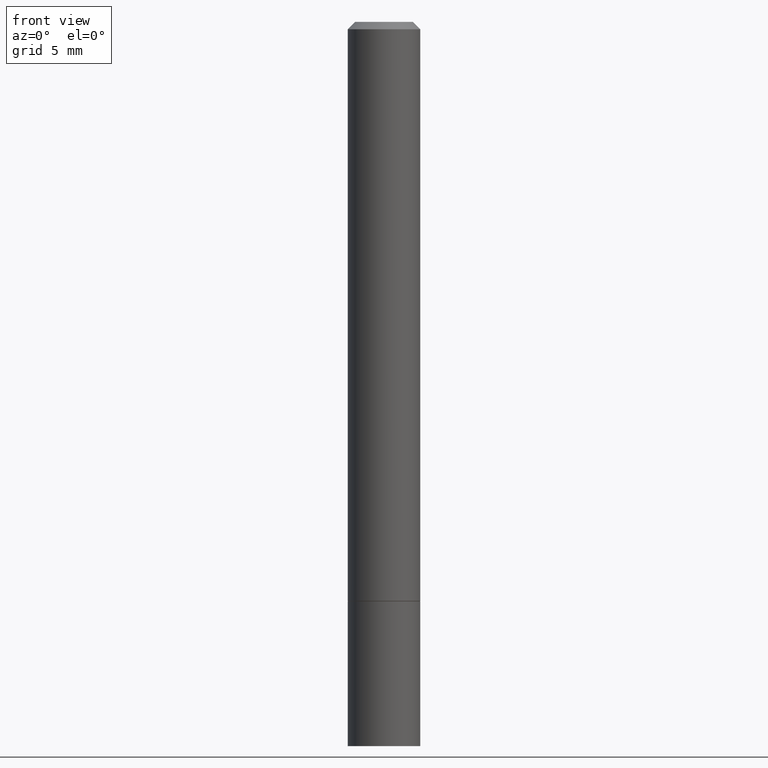
[diagram: clean part render]
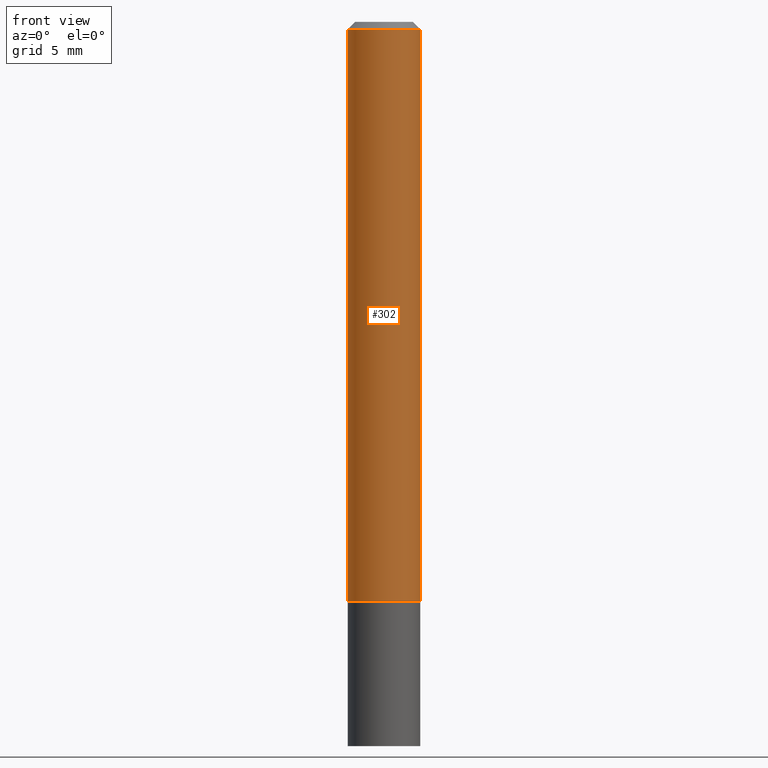
[diagram: same view with one face highlighted and labeled with its STEP entity id]
A machine part, front view. The second image highlights one B-rep face of the part: STEP entity #302.
In plain terms, the highlighted cylindrical surface (edge-blend (fillet) strip) has radius 2.5006 mm, axis along (-0, 0, 1).
Its self-contained STEP definition (entity closure, byte-faithful):
#21 = VERTEX_POINT ( 'NONE', #87 ) ;
#31 = DIRECTION ( 'NONE',  ( 1.000000000000000000, -6.982962677686265922E-15, 0.000000000000000000 ) ) ;
#33 = CARTESIAN_POINT ( 'NONE',  ( -0.09844999999999999585, -2.082832155568282351E-15, -1.573800000000000088 ) ) ;
#38 = AXIS2_PLACEMENT_3D ( 'NONE', #347, #64, #327 ) ;
#52 = ORIENTED_EDGE ( 'NONE', *, *, #291, .T. ) ;
#64 = DIRECTION ( 'NONE',  ( -2.445468806185136597E-29, 3.491481338843145583E-15, 1.000000000000000000 ) ) ;
#87 = CARTESIAN_POINT ( 'NONE',  ( 0.09844999999999980156, -7.452456546574689274E-16, -0.02000000000000002123 ) ) ;
#91 = CYLINDRICAL_SURFACE ( 'NONE', #322, 0.09844999999999991258 ) ;
#107 = VERTEX_POINT ( 'NONE', #33 ) ;
#111 = EDGE_CURVE ( 'NONE', #308, #21, #191, .T. ) ;
#123 = DIRECTION ( 'NONE',  ( -2.445468806185136597E-29, 3.491481338843145583E-15, 1.000000000000000000 ) ) ;
#135 = AXIS2_PLACEMENT_3D ( 'NONE', #288, #123, #31 ) ;
#167 = CIRCLE ( 'NONE', #38, 0.09844999999999980156 ) ;
#170 = ORIENTED_EDGE ( 'NONE', *, *, #111, .T. ) ;
#190 = EDGE_CURVE ( 'NONE', #107, #201, #193, .T. ) ;
#191 = LINE ( 'NONE', #355, #208 ) ;
#193 = LINE ( 'NONE', #301, #230 ) ;
#198 = EDGE_LOOP ( 'NONE', ( #363, #52, #170, #314 ) ) ;
#201 = VERTEX_POINT ( 'NONE', #311 ) ;
#206 = FACE_OUTER_BOUND ( 'NONE', #198, .T. ) ;
#208 = VECTOR ( 'NONE', #332, 39.37007874015748143 ) ;
#209 = CARTESIAN_POINT ( 'NONE',  ( 0.000000000000000000, 0.000000000000000000, 0.000000000000000000 ) ) ;
#230 = VECTOR ( 'NONE', #280, 39.37007874015748143 ) ;
#280 = DIRECTION ( 'NONE',  ( -2.445468806185136877E-29, 3.491481338843145188E-15, 1.000000000000000000 ) ) ;
#288 = CARTESIAN_POINT ( 'NONE',  ( 3.848678807174168313E-29, -5.494893331071342359E-15, -1.573800000000000088 ) ) ;
#291 = EDGE_CURVE ( 'NONE', #107, #308, #342, .T. ) ;
#293 = CARTESIAN_POINT ( 'NONE',  ( 0.09844999999999999585, -6.182366006689555708E-15, -1.573800000000000088 ) ) ;
#301 = CARTESIAN_POINT ( 'NONE',  ( -0.09844999999999991258, 6.995293233558180118E-16, -4.842691596355949838E-30 ) ) ;
#302 = ADVANCED_FACE ( 'NONE', ( #206 ), #91, .T. ) ;
#308 = VERTEX_POINT ( 'NONE', #293 ) ;
#311 = CARTESIAN_POINT ( 'NONE',  ( -0.09844999999999980156, 6.176430488413486702E-16, -0.02000000000000002123 ) ) ;
#314 = ORIENTED_EDGE ( 'NONE', *, *, #333, .F. ) ;
#322 = AXIS2_PLACEMENT_3D ( 'NONE', #209, #345, #344 ) ;
#327 = DIRECTION ( 'NONE',  ( 1.000000000000000000, -6.982962677686266711E-15, 0.000000000000000000 ) ) ;
#332 = DIRECTION ( 'NONE',  ( -2.445468806185136877E-29, 3.491481338843145188E-15, 1.000000000000000000 ) ) ;
#333 = EDGE_CURVE ( 'NONE', #201, #21, #167, .T. ) ;
#342 = CIRCLE ( 'NONE', #135, 0.09844999999999999585 ) ;
#344 = DIRECTION ( 'NONE',  ( 1.000000000000000000, -6.982962677686266711E-15, 4.876176775795935793E-29 ) ) ;
#345 = DIRECTION ( 'NONE',  ( -2.445468806185136597E-29, 3.491481338843145583E-15, 1.000000000000000000 ) ) ;
#347 = CARTESIAN_POINT ( 'NONE',  ( 4.890937612370278413E-31, -6.982962677686297772E-17, -0.02000000000000002123 ) ) ;
#355 = CARTESIAN_POINT ( 'NONE',  ( 0.09844999999999991258, -6.874726756182123629E-16, 4.800596035771094310E-30 ) ) ;
#363 = ORIENTED_EDGE ( 'NONE', *, *, #190, .F. ) ;